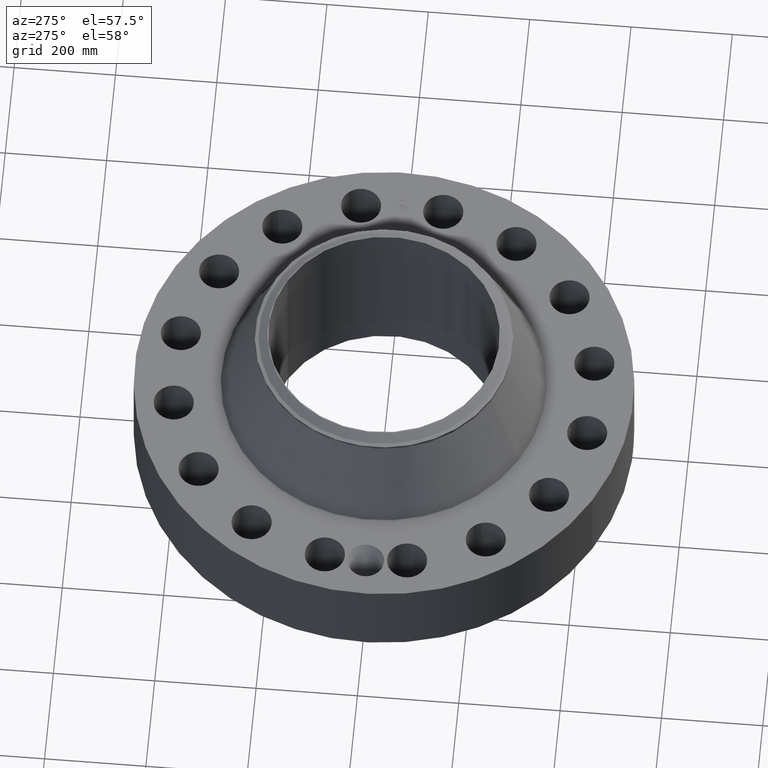
[diagram: clean part render]
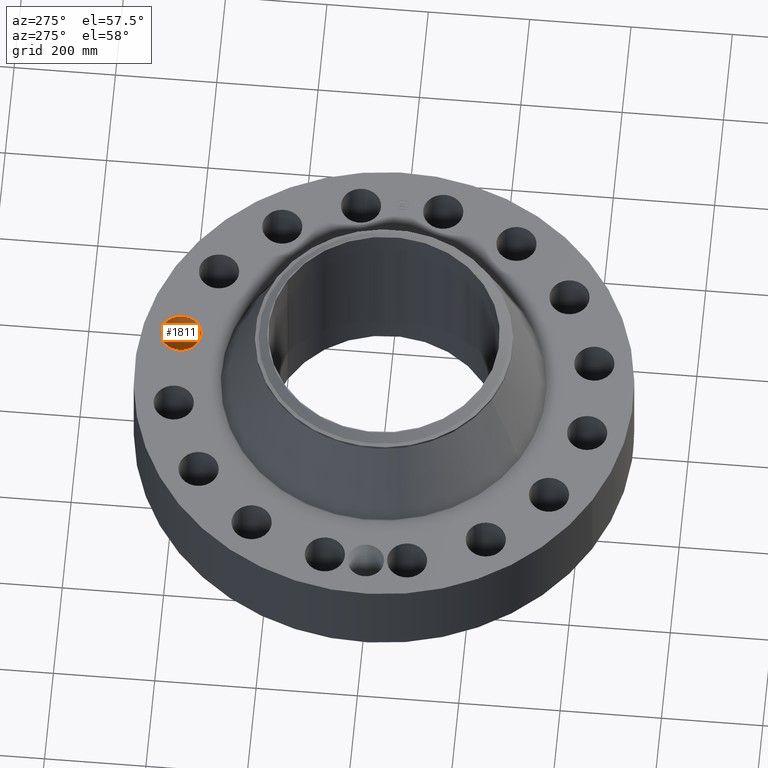
[diagram: same view with one face highlighted and labeled with its STEP entity id]
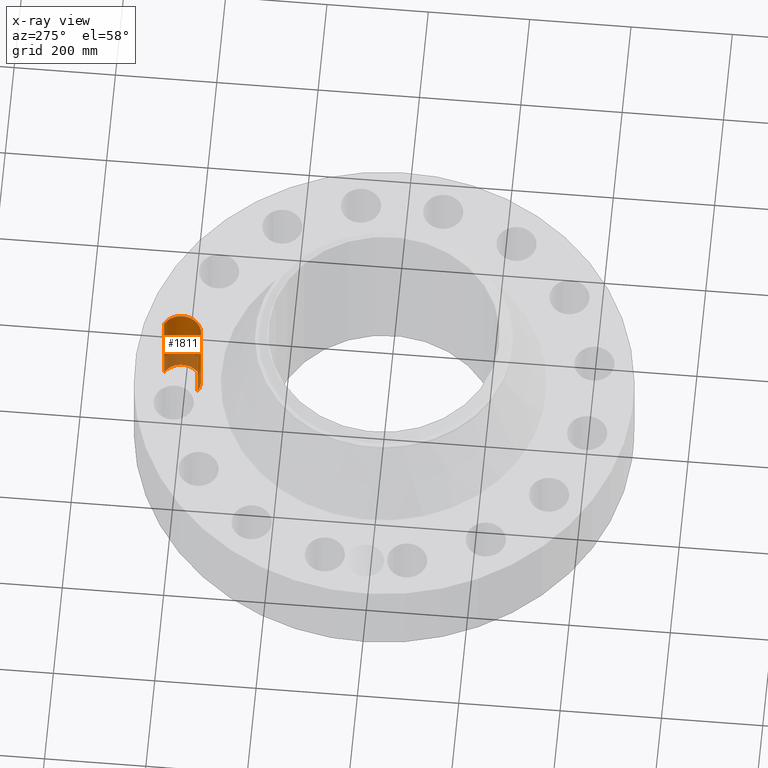
[diagram: x-ray of the same camera — body ghosted, the highlighted face saturated]
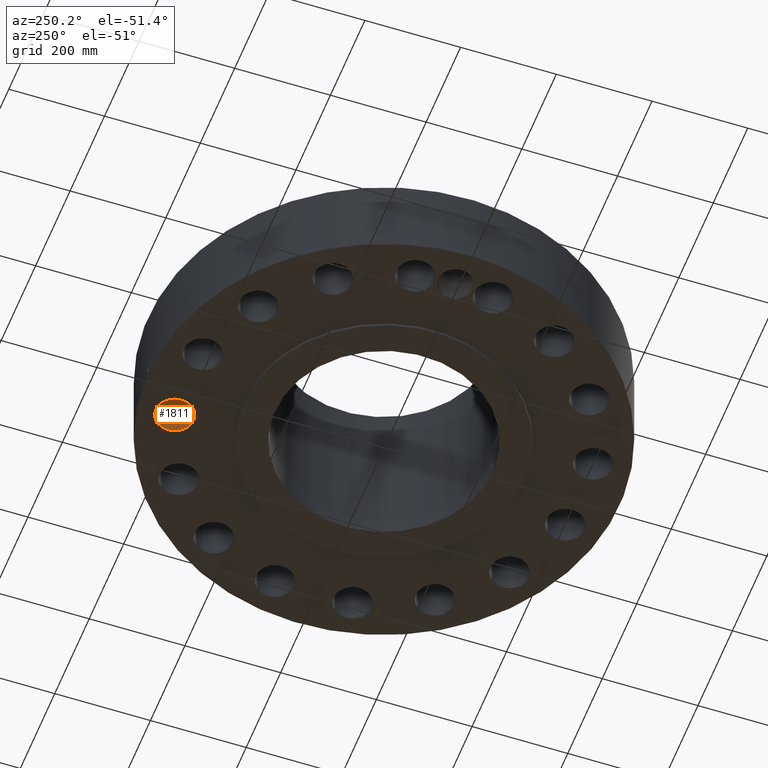
[diagram: same view with one face highlighted and labeled with its STEP entity id]
A machine part, auxiliary view. The second image highlights one B-rep face of the part: STEP entity #1811.
The next image is the same camera in x-ray: the body ghosted, the highlighted face saturated — about 29% of this face is hidden behind the body in this view.
A second angle (auxiliary view) of the same face is appended — the face is thin or edge-on in the first view.
In plain terms, the highlighted cylindrical surface (edge-blend (fillet) strip) has radius 39.624 mm, axis along (0, 0, -1).
Its self-contained STEP definition (entity closure, byte-faithful):
#485=AXIS2_PLACEMENT_3D('Circle Axis2P3D',#483,#484,$) ;
#955=AXIS2_PLACEMENT_3D('Circle Axis2P3D',#953,#954,$) ;
#1786=AXIS2_PLACEMENT_3D('Cylinder Axis2P3D',#1783,#1784,#1785) ;
#478=CARTESIAN_POINT('Vertex',(2.4467001828,14.6913301701,0.250000000001)) ;
#480=CARTESIAN_POINT('Vertex',(3.94250786325,17.4293877632,0.250000000001)) ;
#483=CARTESIAN_POINT('Axis2P3D Location',(3.19460402303,16.0603589667,0.250000000001)) ;
#953=CARTESIAN_POINT('Axis2P3D Location',(3.19460402303,16.0603589667,7.25000000003)) ;
#957=CARTESIAN_POINT('Vertex',(3.94250786325,17.4293877632,7.25000000003)) ;
#959=CARTESIAN_POINT('Vertex',(2.4467001828,14.6913301701,7.25000000003)) ;
#1783=CARTESIAN_POINT('Axis2P3D Location',(3.19460402303,16.0603589667,7.24606299215)) ;
#1788=CARTESIAN_POINT('Line Origine',(2.4467001828,14.6913301701,3.75000000002)) ;
#1793=CARTESIAN_POINT('Line Origine',(3.94250786325,17.4293877632,3.75000000002)) ;
#484=DIRECTION('Axis2P3D Direction',(0.,0.,-0.0393700787402)) ;
#954=DIRECTION('Axis2P3D Direction',(0.,0.,-0.0393700787402)) ;
#1784=DIRECTION('Axis2P3D Direction',(0.,0.,-0.0393700787402)) ;
#1785=DIRECTION('Axis2P3D XDirection',(0.0188750212049,0.0345504945626,0.)) ;
#1789=DIRECTION('Vector Direction',(0.,0.,-0.0393700787402)) ;
#1794=DIRECTION('Vector Direction',(0.,0.,-0.0393700787402)) ;
#1790=VECTOR('Line Direction',#1789,0.0393700787402) ;
#1795=VECTOR('Line Direction',#1794,0.0393700787402) ;
#1806=ORIENTED_EDGE('',*,*,#1797,.F.) ;
#1807=ORIENTED_EDGE('',*,*,#487,.T.) ;
#1808=ORIENTED_EDGE('',*,*,#1792,.T.) ;
#1809=ORIENTED_EDGE('',*,*,#961,.F.) ;
#1811=ADVANCED_FACE('PartBody',(#1810),#1787,.F.) ;
#486=CIRCLE('generated circle',#485,1.56000000001) ;
#956=CIRCLE('generated circle',#955,1.56000000001) ;
#1787=CYLINDRICAL_SURFACE('generated cylinder',#1786,1.56000000001) ;
#487=EDGE_CURVE('',#481,#479,#486,.T.) ;
#961=EDGE_CURVE('',#958,#960,#956,.T.) ;
#1792=EDGE_CURVE('',#479,#960,#1791,.F.) ;
#1797=EDGE_CURVE('',#481,#958,#1796,.F.) ;
#1805=EDGE_LOOP('',(#1806,#1807,#1808,#1809)) ;
#1810=FACE_OUTER_BOUND('',#1805,.T.) ;
#1791=LINE('Line',#1788,#1790) ;
#1796=LINE('Line',#1793,#1795) ;
#479=VERTEX_POINT('',#478) ;
#481=VERTEX_POINT('',#480) ;
#958=VERTEX_POINT('',#957) ;
#960=VERTEX_POINT('',#959) ;